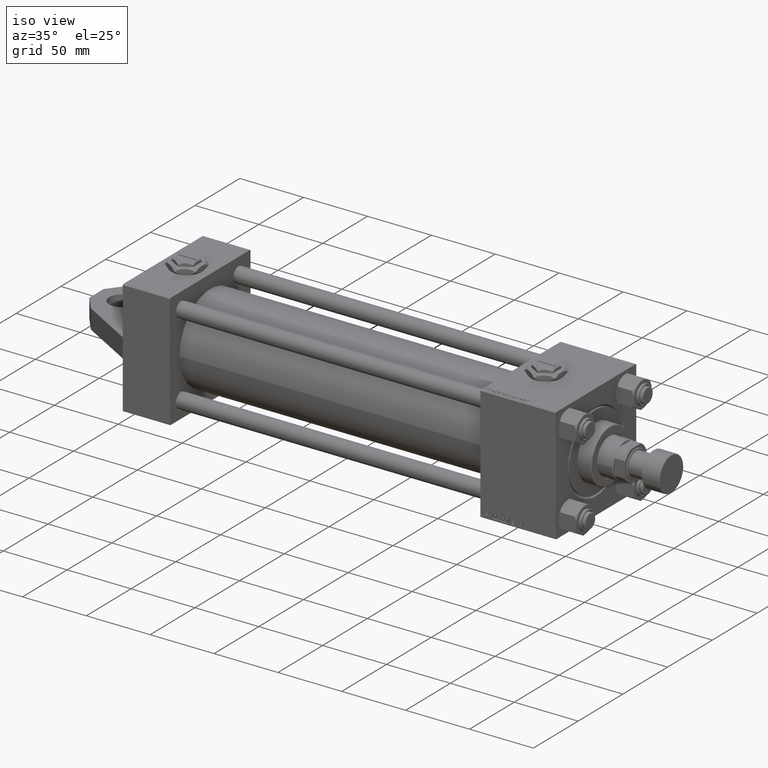
[diagram: clean part render]
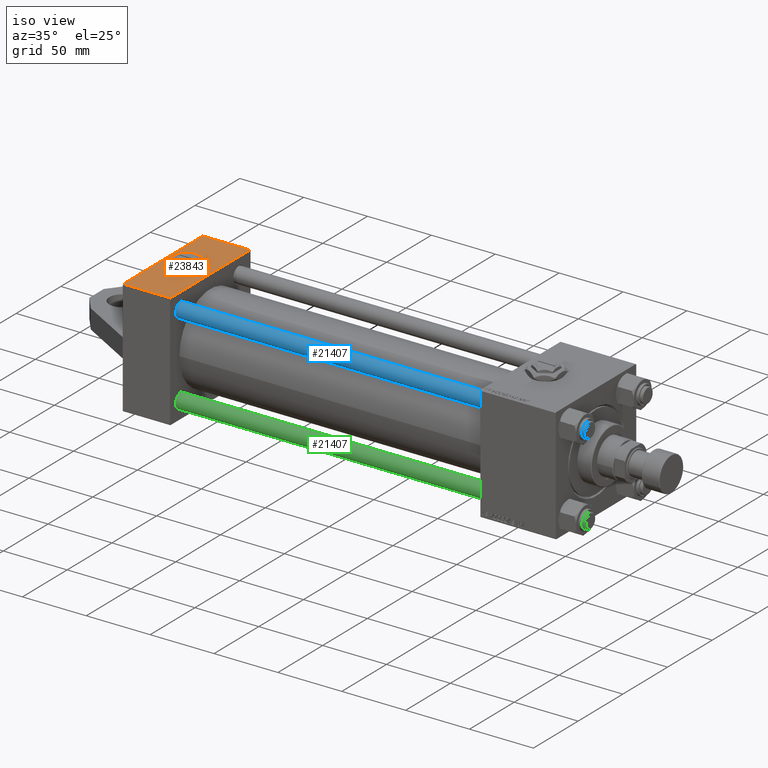
[diagram: same view with three faces highlighted in distinct colors, each labeled with its STEP entity id]
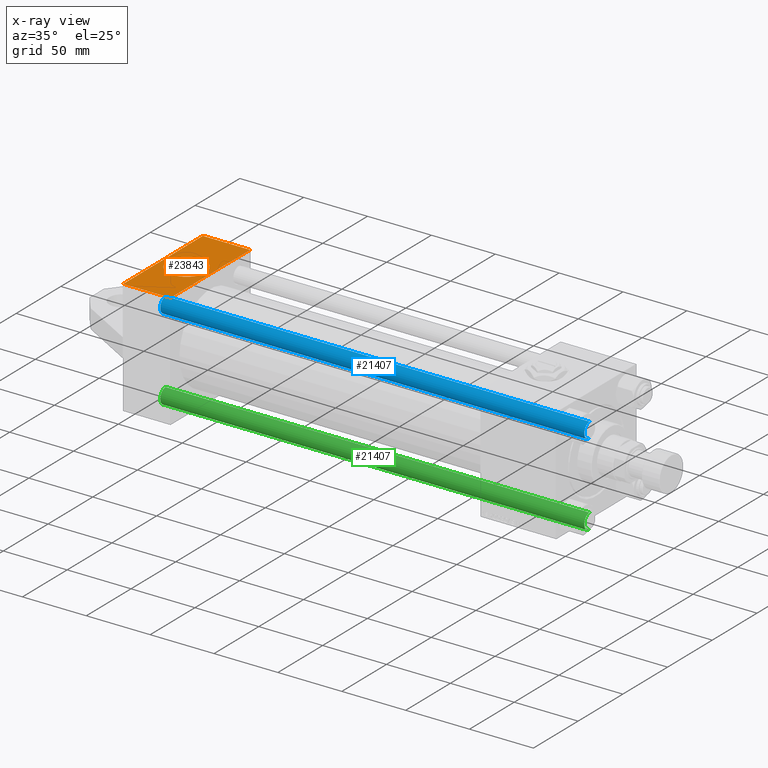
[diagram: x-ray of the same camera — body ghosted, the three highlighted faces saturated]
A machine part, iso view with three faces highlighted in distinct colors.
The next image is the same camera in x-ray (body ghosted, the three faces saturated) — at least one of them is partly hidden behind the body in this view.
Their STEP definitions:

[orange] entity #23843 — the highlighted planar face has unit normal (-0, 0, 1).
#415 = CARTESIAN_POINT ( 'NONE',  ( 37.00000000000000000, 44.99999999999998579, -44.49999999999998579 ) ) ;
#440 = EDGE_CURVE ( 'NONE', #11937, #35390, #23663, .T. ) ;
#1957 = CIRCLE ( 'NONE', #8987, 15.00000000000000178 ) ;
#2009 = FACE_BOUND ( 'NONE', #5211, .T. ) ;
#2259 = PLANE ( 'NONE',  #37330 ) ;
#2938 = EDGE_CURVE ( 'NONE', #35390, #45452, #25791, .T. ) ;
#4839 = CARTESIAN_POINT ( 'NONE',  ( 37.00000000000000000, 44.99999999999998579, 45.00000000000001421 ) ) ;
#5026 = ORIENTED_EDGE ( 'NONE', *, *, #2938, .T. ) ;
#5062 = CARTESIAN_POINT ( 'NONE',  ( 18.50000000000000000, 44.99999999999998579, 15.00000000000000178 ) ) ;
#5211 = EDGE_LOOP ( 'NONE', ( #21589, #36383 ) ) ;
#5725 = AXIS2_PLACEMENT_3D ( 'NONE', #14603, #18759, #41866 ) ;
#8030 = CARTESIAN_POINT ( 'NONE',  ( 37.00000000000000000, 44.99999999999998579, 44.50000000000001421 ) ) ;
#8987 = AXIS2_PLACEMENT_3D ( 'NONE', #34748, #34502, #45591 ) ;
#11937 = VERTEX_POINT ( 'NONE', #37658 ) ;
#14603 = CARTESIAN_POINT ( 'NONE',  ( 18.50000000000000000, 44.99999999999998579, 0.000000000000000000 ) ) ;
#17217 = DIRECTION ( 'NONE',  ( -0.000000000000000000, 1.000000000000000000, 0.000000000000000000 ) ) ;
#17381 = CARTESIAN_POINT ( 'NONE',  ( 0.000000000000000000, 44.99999999999998579, 45.00000000000001421 ) ) ;
#17469 = DIRECTION ( 'NONE',  ( 0.000000000000000000, -0.000000000000000000, 1.000000000000000000 ) ) ;
#18759 = DIRECTION ( 'NONE',  ( 0.000000000000000000, 1.000000000000000000, 0.000000000000000000 ) ) ;
#19094 = DIRECTION ( 'NONE',  ( 0.000000000000000000, 0.000000000000000000, -1.000000000000000000 ) ) ;
#19809 = CIRCLE ( 'NONE', #5725, 15.00000000000000178 ) ;
#20140 = VECTOR ( 'NONE', #19094, 1000.000000000000000 ) ;
#21427 = EDGE_CURVE ( 'NONE', #45509, #23425, #1957, .T. ) ;
#21589 = ORIENTED_EDGE ( 'NONE', *, *, #46991, .F. ) ;
#22297 = LINE ( 'NONE', #415, #35252 ) ;
#22537 = ORIENTED_EDGE ( 'NONE', *, *, #440, .T. ) ;
#23334 = ORIENTED_EDGE ( 'NONE', *, *, #35524, .T. ) ;
#23425 = VERTEX_POINT ( 'NONE', #5062 ) ;
#23663 = LINE ( 'NONE', #38643, #38103 ) ;
#23843 = ADVANCED_FACE ( 'NONE', ( #2009, #30124 ), #2259, .T. ) ;
#25791 = LINE ( 'NONE', #4839, #20140 ) ;
#26233 = DIRECTION ( 'NONE',  ( -1.000000000000000000, 0.000000000000000000, 0.000000000000000000 ) ) ;
#28084 = DIRECTION ( 'NONE',  ( 1.000000000000000000, 0.000000000000000000, 0.000000000000000000 ) ) ;
#30124 = FACE_OUTER_BOUND ( 'NONE', #41840, .T. ) ;
#34093 = CARTESIAN_POINT ( 'NONE',  ( 37.00000000000000000, 44.99999999999998579, -44.49999999999995737 ) ) ;
#34502 = DIRECTION ( 'NONE',  ( 0.000000000000000000, 1.000000000000000000, 0.000000000000000000 ) ) ;
#34748 = CARTESIAN_POINT ( 'NONE',  ( 18.50000000000000000, 44.99999999999998579, 0.000000000000000000 ) ) ;
#35252 = VECTOR ( 'NONE', #26233, 1000.000000000000000 ) ;
#35390 = VERTEX_POINT ( 'NONE', #8030 ) ;
#35524 = EDGE_CURVE ( 'NONE', #45452, #44207, #22297, .T. ) ;
#36383 = ORIENTED_EDGE ( 'NONE', *, *, #21427, .F. ) ;
#37330 = AXIS2_PLACEMENT_3D ( 'NONE', #47467, #17217, #17469 ) ;
#37658 = CARTESIAN_POINT ( 'NONE',  ( 0.000000000000000000, 44.99999999999998579, 44.50000000000001421 ) ) ;
#38103 = VECTOR ( 'NONE', #28084, 1000.000000000000000 ) ;
#38643 = CARTESIAN_POINT ( 'NONE',  ( 37.00000000000000000, 44.99999999999998579, 44.50000000000001421 ) ) ;
#38762 = CARTESIAN_POINT ( 'NONE',  ( 18.50000000000000355, 44.99999999999998579, -15.00000000000000178 ) ) ;
#40984 = CARTESIAN_POINT ( 'NONE',  ( 0.000000000000000000, 44.99999999999998579, -44.49999999999995737 ) ) ;
#41840 = EDGE_LOOP ( 'NONE', ( #5026, #23334, #43956, #22537 ) ) ;
#41866 = DIRECTION ( 'NONE',  ( 0.000000000000000000, 0.000000000000000000, 1.000000000000000000 ) ) ;
#43450 = DIRECTION ( 'NONE',  ( 0.000000000000000000, 0.000000000000000000, -1.000000000000000000 ) ) ;
#43956 = ORIENTED_EDGE ( 'NONE', *, *, #44064, .F. ) ;
#44064 = EDGE_CURVE ( 'NONE', #11937, #44207, #47381, .T. ) ;
#44207 = VERTEX_POINT ( 'NONE', #40984 ) ;
#45452 = VERTEX_POINT ( 'NONE', #34093 ) ;
#45509 = VERTEX_POINT ( 'NONE', #38762 ) ;
#45591 = DIRECTION ( 'NONE',  ( 0.000000000000000000, 0.000000000000000000, 1.000000000000000000 ) ) ;
#46991 = EDGE_CURVE ( 'NONE', #23425, #45509, #19809, .T. ) ;
#47204 = VECTOR ( 'NONE', #43450, 1000.000000000000000 ) ;
#47381 = LINE ( 'NONE', #17381, #47204 ) ;
#47467 = CARTESIAN_POINT ( 'NONE',  ( 37.00000000000000000, 44.99999999999998579, 45.00000000000001421 ) ) ;

[blue] entity #21407 — the highlighted cylindrical surface (edge-blend (fillet) strip) has radius 6 mm, axis along (1, 0, 0).
#1582 = CARTESIAN_POINT ( 'NONE',  ( 0.000000000000000000, 0.000000000000000000, 333.0000000000000000 ) ) ;
#1717 = EDGE_CURVE ( 'NONE', #11757, #24730, #18536, .T. ) ;
#2237 = ORIENTED_EDGE ( 'NONE', *, *, #36219, .F. ) ;
#2328 = DIRECTION ( 'NONE',  ( 1.000000000000000000, 0.000000000000000000, 0.000000000000000000 ) ) ;
#4283 = AXIS2_PLACEMENT_3D ( 'NONE', #1582, #38440, #19508 ) ;
#6259 = CARTESIAN_POINT ( 'NONE',  ( 0.000000000000000000, 0.000000000000000000, 0.5000000000000004441 ) ) ;
#7567 = AXIS2_PLACEMENT_3D ( 'NONE', #41510, #7589, #26281 ) ;
#7589 = DIRECTION ( 'NONE',  ( 0.000000000000000000, 0.000000000000000000, -1.000000000000000000 ) ) ;
#8702 = CYLINDRICAL_SURFACE ( 'NONE', #4283, 6.000000000000000888 ) ;
#10409 = ORIENTED_EDGE ( 'NONE', *, *, #10697, .T. ) ;
#10697 = EDGE_CURVE ( 'NONE', #24730, #13150, #40328, .T. ) ;
#11757 = VERTEX_POINT ( 'NONE', #24062 ) ;
#12371 = CARTESIAN_POINT ( 'NONE',  ( 6.000000000000000888, 7.347880794884120722E-16, 332.5000000000001137 ) ) ;
#13150 = VERTEX_POINT ( 'NONE', #27160 ) ;
#14982 = DIRECTION ( 'NONE',  ( -0.000000000000000000, -0.000000000000000000, -1.000000000000000000 ) ) ;
#17689 = DIRECTION ( 'NONE',  ( -0.000000000000000000, -0.000000000000000000, -1.000000000000000000 ) ) ;
#18019 = DIRECTION ( 'NONE',  ( -0.000000000000000000, -0.000000000000000000, 1.000000000000000000 ) ) ;
#18184 = CARTESIAN_POINT ( 'NONE',  ( -6.000000000000000888, 0.000000000000000000, 333.0000000000000000 ) ) ;
#18412 = LINE ( 'NONE', #18184, #31335 ) ;
#18536 = CIRCLE ( 'NONE', #7567, 6.000000000000000888 ) ;
#19010 = AXIS2_PLACEMENT_3D ( 'NONE', #6259, #18019, #2328 ) ;
#19267 = EDGE_CURVE ( 'NONE', #13150, #44089, #38635, .T. ) ;
#19508 = DIRECTION ( 'NONE',  ( -1.000000000000000000, 0.000000000000000000, 0.000000000000000000 ) ) ;
#21285 = EDGE_LOOP ( 'NONE', ( #35223, #10409, #35146, #2237 ) ) ;
#21407 = ADVANCED_FACE ( 'NONE', ( #31570 ), #8702, .T. ) ;
#21645 = CARTESIAN_POINT ( 'NONE',  ( 6.000000000000000888, 7.347880794884120722E-16, 333.0000000000000000 ) ) ;
#22060 = CARTESIAN_POINT ( 'NONE',  ( -6.000000000000000888, 0.000000000000000000, 0.5000000000000004441 ) ) ;
#24062 = CARTESIAN_POINT ( 'NONE',  ( -6.000000000000000888, 0.000000000000000000, 332.5000000000001137 ) ) ;
#24730 = VERTEX_POINT ( 'NONE', #12371 ) ;
#26281 = DIRECTION ( 'NONE',  ( 1.000000000000000000, 0.000000000000000000, 0.000000000000000000 ) ) ;
#27160 = CARTESIAN_POINT ( 'NONE',  ( 6.000000000000000888, 7.347880794884120722E-16, 0.5000000000000004441 ) ) ;
#27467 = VECTOR ( 'NONE', #17689, 1000.000000000000000 ) ;
#31335 = VECTOR ( 'NONE', #14982, 1000.000000000000000 ) ;
#31570 = FACE_OUTER_BOUND ( 'NONE', #21285, .T. ) ;
#35146 = ORIENTED_EDGE ( 'NONE', *, *, #19267, .T. ) ;
#35223 = ORIENTED_EDGE ( 'NONE', *, *, #1717, .T. ) ;
#36219 = EDGE_CURVE ( 'NONE', #11757, #44089, #18412, .T. ) ;
#38440 = DIRECTION ( 'NONE',  ( -0.000000000000000000, -0.000000000000000000, -1.000000000000000000 ) ) ;
#38635 = CIRCLE ( 'NONE', #19010, 6.000000000000000888 ) ;
#40328 = LINE ( 'NONE', #21645, #27467 ) ;
#41510 = CARTESIAN_POINT ( 'NONE',  ( 0.000000000000000000, 0.000000000000000000, 332.5000000000001137 ) ) ;
#44089 = VERTEX_POINT ( 'NONE', #22060 ) ;

[green] entity #21407 — the highlighted cylindrical surface (edge-blend (fillet) strip) has radius 6 mm, axis along (-1, -0, 0).
#1582 = CARTESIAN_POINT ( 'NONE',  ( 0.000000000000000000, 0.000000000000000000, 333.0000000000000000 ) ) ;
#1717 = EDGE_CURVE ( 'NONE', #11757, #24730, #18536, .T. ) ;
#2237 = ORIENTED_EDGE ( 'NONE', *, *, #36219, .F. ) ;
#2328 = DIRECTION ( 'NONE',  ( 1.000000000000000000, 0.000000000000000000, 0.000000000000000000 ) ) ;
#4283 = AXIS2_PLACEMENT_3D ( 'NONE', #1582, #38440, #19508 ) ;
#6259 = CARTESIAN_POINT ( 'NONE',  ( 0.000000000000000000, 0.000000000000000000, 0.5000000000000004441 ) ) ;
#7567 = AXIS2_PLACEMENT_3D ( 'NONE', #41510, #7589, #26281 ) ;
#7589 = DIRECTION ( 'NONE',  ( 0.000000000000000000, 0.000000000000000000, -1.000000000000000000 ) ) ;
#8702 = CYLINDRICAL_SURFACE ( 'NONE', #4283, 6.000000000000000888 ) ;
#10409 = ORIENTED_EDGE ( 'NONE', *, *, #10697, .T. ) ;
#10697 = EDGE_CURVE ( 'NONE', #24730, #13150, #40328, .T. ) ;
#11757 = VERTEX_POINT ( 'NONE', #24062 ) ;
#12371 = CARTESIAN_POINT ( 'NONE',  ( 6.000000000000000888, 7.347880794884120722E-16, 332.5000000000001137 ) ) ;
#13150 = VERTEX_POINT ( 'NONE', #27160 ) ;
#14982 = DIRECTION ( 'NONE',  ( -0.000000000000000000, -0.000000000000000000, -1.000000000000000000 ) ) ;
#17689 = DIRECTION ( 'NONE',  ( -0.000000000000000000, -0.000000000000000000, -1.000000000000000000 ) ) ;
#18019 = DIRECTION ( 'NONE',  ( -0.000000000000000000, -0.000000000000000000, 1.000000000000000000 ) ) ;
#18184 = CARTESIAN_POINT ( 'NONE',  ( -6.000000000000000888, 0.000000000000000000, 333.0000000000000000 ) ) ;
#18412 = LINE ( 'NONE', #18184, #31335 ) ;
#18536 = CIRCLE ( 'NONE', #7567, 6.000000000000000888 ) ;
#19010 = AXIS2_PLACEMENT_3D ( 'NONE', #6259, #18019, #2328 ) ;
#19267 = EDGE_CURVE ( 'NONE', #13150, #44089, #38635, .T. ) ;
#19508 = DIRECTION ( 'NONE',  ( -1.000000000000000000, 0.000000000000000000, 0.000000000000000000 ) ) ;
#21285 = EDGE_LOOP ( 'NONE', ( #35223, #10409, #35146, #2237 ) ) ;
#21407 = ADVANCED_FACE ( 'NONE', ( #31570 ), #8702, .T. ) ;
#21645 = CARTESIAN_POINT ( 'NONE',  ( 6.000000000000000888, 7.347880794884120722E-16, 333.0000000000000000 ) ) ;
#22060 = CARTESIAN_POINT ( 'NONE',  ( -6.000000000000000888, 0.000000000000000000, 0.5000000000000004441 ) ) ;
#24062 = CARTESIAN_POINT ( 'NONE',  ( -6.000000000000000888, 0.000000000000000000, 332.5000000000001137 ) ) ;
#24730 = VERTEX_POINT ( 'NONE', #12371 ) ;
#26281 = DIRECTION ( 'NONE',  ( 1.000000000000000000, 0.000000000000000000, 0.000000000000000000 ) ) ;
#27160 = CARTESIAN_POINT ( 'NONE',  ( 6.000000000000000888, 7.347880794884120722E-16, 0.5000000000000004441 ) ) ;
#27467 = VECTOR ( 'NONE', #17689, 1000.000000000000000 ) ;
#31335 = VECTOR ( 'NONE', #14982, 1000.000000000000000 ) ;
#31570 = FACE_OUTER_BOUND ( 'NONE', #21285, .T. ) ;
#35146 = ORIENTED_EDGE ( 'NONE', *, *, #19267, .T. ) ;
#35223 = ORIENTED_EDGE ( 'NONE', *, *, #1717, .T. ) ;
#36219 = EDGE_CURVE ( 'NONE', #11757, #44089, #18412, .T. ) ;
#38440 = DIRECTION ( 'NONE',  ( -0.000000000000000000, -0.000000000000000000, -1.000000000000000000 ) ) ;
#38635 = CIRCLE ( 'NONE', #19010, 6.000000000000000888 ) ;
#40328 = LINE ( 'NONE', #21645, #27467 ) ;
#41510 = CARTESIAN_POINT ( 'NONE',  ( 0.000000000000000000, 0.000000000000000000, 332.5000000000001137 ) ) ;
#44089 = VERTEX_POINT ( 'NONE', #22060 ) ;